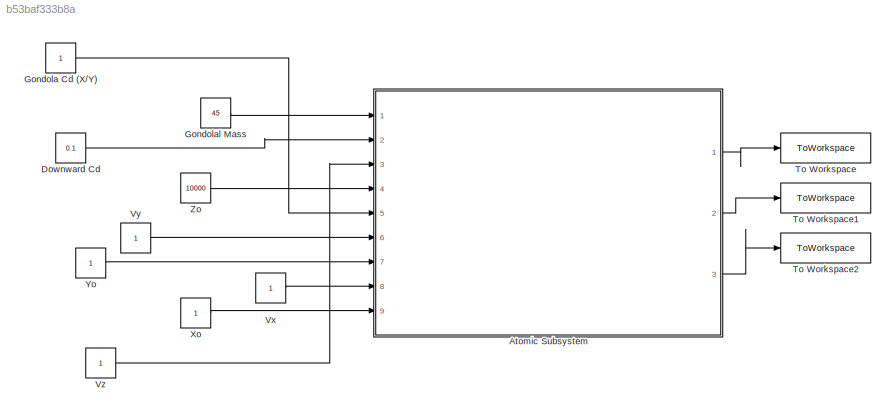
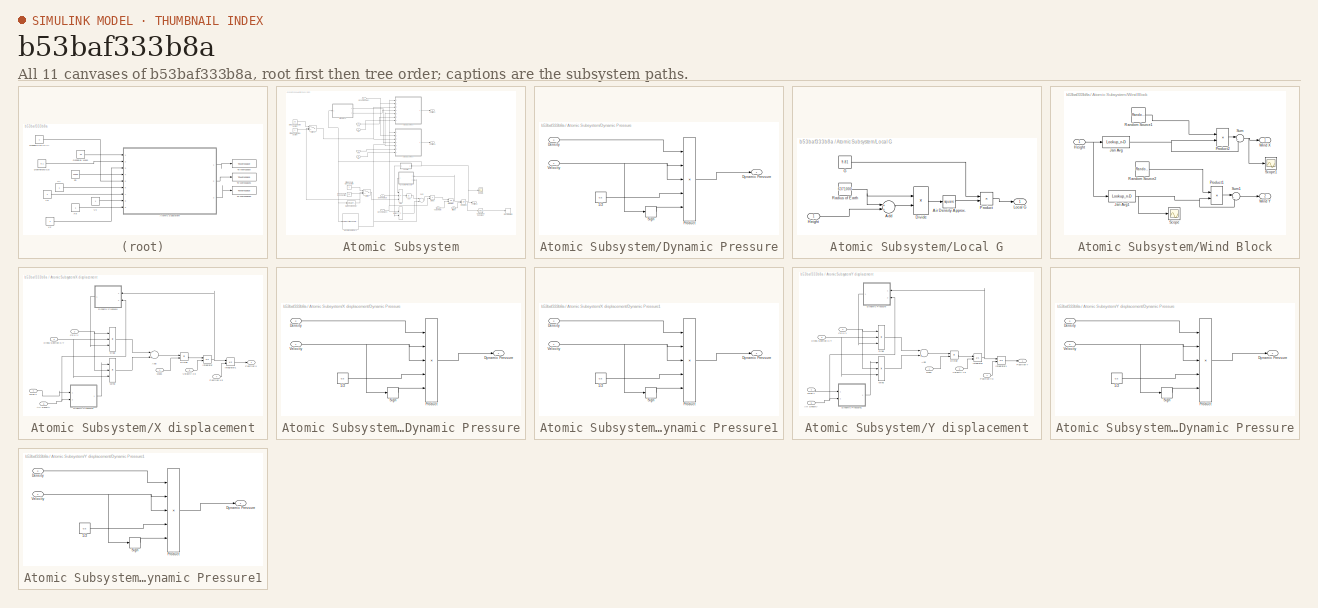
[diagram: thumbnail index - all 11 canvases of the model, root first then tree order]
MODEL slx_b53baf333b8a
KIND model
CONFIG AbsTol = auto
CONFIG EnableMultiTasking = off
CONFIG FixedStep = auto
CONFIG MaxStep = auto
CONFIG MinStep = auto
CONFIG RelTol = 1e-3
CONFIG SampleTimeConstraint = Unconstrained
CONFIG Solver = VariableStepAuto
CONFIG SolverName = VariableStepAuto
CONFIG StartTime = 0.0
CONFIG StopTime = 200.0
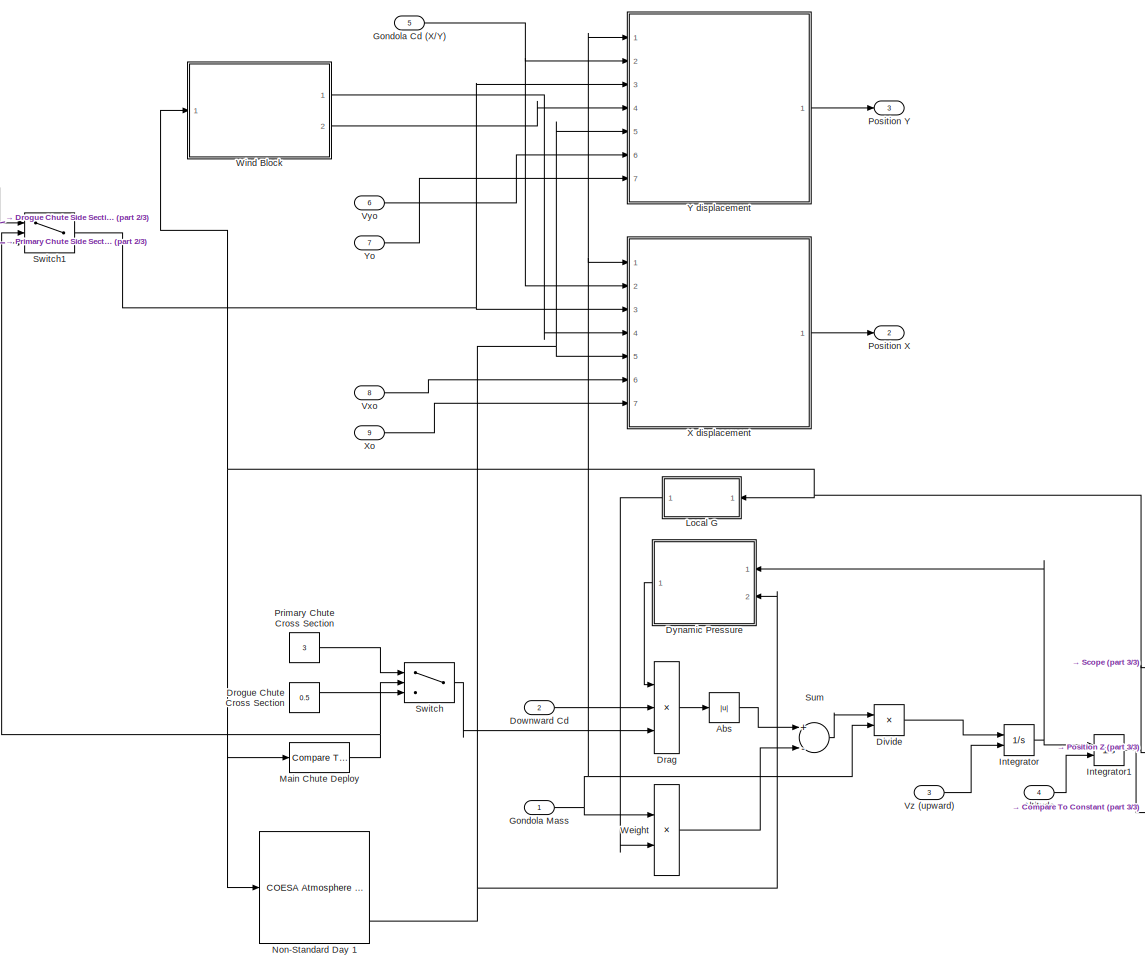
[diagram: Atomic Subsystem - part 1/3, center side, full height]
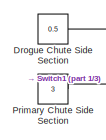
[diagram: Atomic Subsystem - part 2/3, top left region]
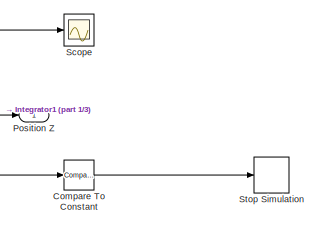
[diagram: Atomic Subsystem - part 3/3, bottom right region]
BLOCK [SubSystem] Atomic Subsystem
  Ports = [9, 3]
  RequestExecContextInheritance = off
  TreatAsAtomicUnit = on
BLOCK [Abs] Atomic Subsystem/Abs
  SaturateOnIntegerOverflow = off
BLOCK [Inport] Atomic Subsystem/Altitude
  IconDisplay = Port number
  Port = 4
BLOCK [Reference] Atomic Subsystem/Compare To Constant  REF=simulink/Logic and Bit
Operations/Compare
To Constant
  Ports = [1, 1]
  SourceBlock = simulink/Logic and Bit\nOperations/Compare\nTo Constant
  SourceProductBaseCode = SL
  SourceProductName = Simulink
  SourceType = Compare To Constant
BLOCK [Product] Atomic Subsystem/Divide
  InputSameDT = off
  Inputs = */
  OutDataTypeStr = Inherit: Inherit via internal rule
  Ports = [2, 1]
  RndMeth = Floor
  SaturateOnIntegerOverflow = off
BLOCK [Inport] Atomic Subsystem/Downward Cd
  IconDisplay = Port number
  Port = 2
BLOCK [Product] Atomic Subsystem/Drag
  InputSameDT = off
  Inputs = 3
  OutDataTypeStr = Inherit: Inherit via internal rule
  Ports = [3, 1]
  RndMeth = Floor
  SaturateOnIntegerOverflow = off
BLOCK [Constant] Atomic Subsystem/Drogue Chute Cross Section
  Value = 0.5
BLOCK [Constant] Atomic Subsystem/Drogue Chute Side Section
  Value = 0.5
BLOCK [SubSystem] Atomic Subsystem/Dynamic Pressure
  Ports = [2, 1]
  RequestExecContextInheritance = off
  TreatAsAtomicUnit = on
BLOCK [Constant] Atomic Subsystem/Dynamic Pressure/1//2
  Value = 0.5
BLOCK [Inport] Atomic Subsystem/Dynamic Pressure/Density
  IconDisplay = Port number
  Port = 2
BLOCK [Outport] Atomic Subsystem/Dynamic Pressure/Dynamic Pressure
  IconDisplay = Port number
BLOCK [Product] Atomic Subsystem/Dynamic Pressure/Product
  InputSameDT = off
  Inputs = 5
  OutDataTypeStr = Inherit: Inherit via internal rule
  Ports = [5, 1]
  RndMeth = Floor
  SaturateOnIntegerOverflow = off
BLOCK [Signum] Atomic Subsystem/Dynamic Pressure/Sign
BLOCK [Inport] Atomic Subsystem/Dynamic Pressure/Velocity 
  IconDisplay = Port number
BLOCK [Inport] Atomic Subsystem/Gondola Cd (X//Y)
  IconDisplay = Port number
  Port = 5
BLOCK [Inport] Atomic Subsystem/Gondola Mass
  IconDisplay = Port number
BLOCK [Integrator] Atomic Subsystem/Integrator
  InitialConditionSource = external
  Ports = [2, 1]
BLOCK [Integrator] Atomic Subsystem/Integrator1
  InitialConditionSource = external
  Ports = [2, 1]
BLOCK [SubSystem] Atomic Subsystem/Local G
  Ports = [1, 1]
  RequestExecContextInheritance = off
BLOCK [Sum] Atomic Subsystem/Local G/Add
  InputSameDT = off
  OutDataTypeStr = Inherit: Inherit via internal rule
  Ports = [2, 1]
  SaturateOnIntegerOverflow = off
BLOCK [Math] Atomic Subsystem/Local G/Air Density Approx.
  Operator = square
  OutMax = 10000
  OutMin = 0
  Ports = [1, 1]
BLOCK [Product] Atomic Subsystem/Local G/Divide
  InputSameDT = off
  Inputs = */
  OutDataTypeStr = Inherit: Inherit via internal rule
  Ports = [2, 1]
  RndMeth = Floor
  SaturateOnIntegerOverflow = off
BLOCK [Constant] Atomic Subsystem/Local G/G
  Value = 9.81
BLOCK [Inport] Atomic Subsystem/Local G/Height
  IconDisplay = Port number
BLOCK [Outport] Atomic Subsystem/Local G/Local G
  IconDisplay = Port number
  VectorParamsAs1DForOutWhenUnconnected = off
BLOCK [Product] Atomic Subsystem/Local G/Product
  InputSameDT = off
  OutDataTypeStr = Inherit: Inherit via internal rule
  Ports = [2, 1]
  RndMeth = Floor
  SaturateOnIntegerOverflow = off
BLOCK [Constant] Atomic Subsystem/Local G/Radius of Earth
  Value = 6371000
BLOCK [Reference] Atomic Subsystem/Main Chute Deploy  REF=simulink/Logic and Bit
Operations/Compare
To Constant
  Ports = [1, 1]
  SourceBlock = simulink/Logic and Bit\nOperations/Compare\nTo Constant
  SourceProductBaseCode = SL
  SourceProductName = Simulink
  SourceType = Compare To Constant
BLOCK [Reference] Atomic Subsystem/Non-Standard Day 1  REF=aerolibatmos2/COESA Atmosphere Model
  Ports = [1, 4]
  SourceBlock = aerolibatmos2/COESA Atmosphere Model
  SourceProductBaseCode = AE
  SourceProductName = Aerospace Blockset
  SourceType = Atmosphere Model
BLOCK [Outport] Atomic Subsystem/Position X
  IconDisplay = Port number
  Port = 2
BLOCK [Outport] Atomic Subsystem/Position Y
  IconDisplay = Port number
  Port = 3
BLOCK [Outport] Atomic Subsystem/Position Z
  IconDisplay = Port number
BLOCK [Constant] Atomic Subsystem/Primary Chute Cross Section
  Value = 3
BLOCK [Constant] Atomic Subsystem/Primary Chute Side Section
  Value = 3
BLOCK [Scope] Atomic Subsystem/Scope
  Floating = off
  NumInputPorts = 1
  Ports = [1]
  ScopeSpecificationString = Simulink.scopes.TimeScopeBlockCfg('CurrentConfiguration', extmgr.ConfigurationSet(extmgr.Configuration('Core','General UI',true),extmgr.Configuration('Core','Source UI',true),extmgr.Configuration('Sources','WiredSimulink',true),extmgr.Configuration('Visuals','Time Domain',true,'SerializedDisplays',{struct('MinYLimReal','-1246.63139','MaxYLimReal','11249.68252','YLabelReal','','MinYLimMag','  0.000...<+1418ch>
BLOCK [Stop] Atomic Subsystem/Stop Simulation
BLOCK [Sum] Atomic Subsystem/Sum
  InputSameDT = off
  Inputs = +-
  OutDataTypeStr = Inherit: Inherit via internal rule
  Ports = [2, 1]
  SaturateOnIntegerOverflow = off
BLOCK [Switch] Atomic Subsystem/Switch
  Criteria = u2 > Threshold
  InputSameDT = off
  SaturateOnIntegerOverflow = off
BLOCK [Switch] Atomic Subsystem/Switch1
  Criteria = u2 > Threshold
  InputSameDT = off
  SaturateOnIntegerOverflow = off
BLOCK [Inport] Atomic Subsystem/Vxo
  IconDisplay = Port number
  Port = 8
BLOCK [Inport] Atomic Subsystem/Vyo
  IconDisplay = Port number
  Port = 6
BLOCK [Inport] Atomic Subsystem/Vz (upward)
  IconDisplay = Port number
  Port = 3
BLOCK [Product] Atomic Subsystem/Weight
  InputSameDT = off
  OutDataTypeStr = Inherit: Inherit via internal rule
  Ports = [2, 1]
  RndMeth = Floor
  SaturateOnIntegerOverflow = off
BLOCK [SubSystem] Atomic Subsystem/Wind Block
  Ports = [1, 2]
  RequestExecContextInheritance = off
  TreatAsAtomicUnit = on
BLOCK [Inport] Atomic Subsystem/Wind Block/Height
  IconDisplay = Port number
BLOCK [Lookup_n-D] Atomic Subsystem/Wind Block/Jan Avg
  BreakpointsForDimension1 = [0,5000,10000,15000,20000,24000,100000]
  ExtrapMethod = Clip
  IndexSearchMethod = Linear search
  InternalRulePriority = Speed
  InterpMethod = Cubic spline
  NumberOfTableDimensions = 1
  Ports = [1, 1]
  RndMeth = Simplest
  Table = [2,17,30,22,5,2,0]
  UseLastTableValue = on
BLOCK [Lookup_n-D] Atomic Subsystem/Wind Block/Jan Avg1
  BreakpointsForDimension1 = [0,5000,10000,15000,20000,24000,100000]
  ExtrapMethod = Clip
  InternalRulePriority = Speed
  InterpMethod = Cubic spline
  NumberOfTableDimensions = 1
  Ports = [1, 1]
  RndMeth = Simplest
  Table = [2,17,30,22,5,2,0]
  UseLastTableValue = on
BLOCK [Product] Atomic Subsystem/Wind Block/Product1
  InputSameDT = off
  OutDataTypeStr = Inherit: Inherit via internal rule
  Ports = [2, 1]
  RndMeth = Floor
  SaturateOnIntegerOverflow = off
BLOCK [Product] Atomic Subsystem/Wind Block/Product2
  InputSameDT = off
  OutDataTypeStr = Inherit: Inherit via internal rule
  Ports = [2, 1]
  RndMeth = Floor
  SaturateOnIntegerOverflow = off
BLOCK [Reference] Atomic Subsystem/Wind Block/Random Source1  REF=dspsrcs4/Random
Source
  Ports = [0, 1]
  SourceBlock = dspsrcs4/Random\nSource
  SourceProductBaseCode = DS
  SourceProductName = DSP System Toolbox
  SourceType = Random Source
  UserDataPersistent = on
BLOCK [Reference] Atomic Subsystem/Wind Block/Random Source2  REF=dspsrcs4/Random
Source
  Ports = [0, 1]
  SourceBlock = dspsrcs4/Random\nSource
  SourceProductBaseCode = DS
  SourceProductName = DSP System Toolbox
  SourceType = Random Source
  UserDataPersistent = on
BLOCK [Scope] Atomic Subsystem/Wind Block/Scope
  Floating = off
  NumInputPorts = 1
  Ports = [1]
  ScopeSpecificationString = Simulink.scopes.TimeScopeBlockCfg('CurrentConfiguration', extmgr.ConfigurationSet(extmgr.Configuration('Core','General UI',true),extmgr.Configuration('Core','Source UI',true),extmgr.Configuration('Sources','WiredSimulink',true,'DataLoggingVariableName','ScopeData10'),extmgr.Configuration('Visuals','Time Domain',true,'SerializedDisplays',{struct('MinYLimReal','-1.03996','MaxYLimReal','29.38818','YL...<+1405ch>
BLOCK [Scope] Atomic Subsystem/Wind Block/Scope1
  Floating = off
  NumInputPorts = 1
  Ports = [1]
  ScopeSpecificationString = Simulink.scopes.TimeScopeBlockCfg('CurrentConfiguration', extmgr.ConfigurationSet(extmgr.Configuration('Core','General UI',true),extmgr.Configuration('Core','Source UI',true),extmgr.Configuration('Sources','WiredSimulink',true,'DataLoggingVariableName','ScopeData11'),extmgr.Configuration('Visuals','Time Domain',true,'SerializedDisplays',{struct('MinYLimReal','-0.7338','MaxYLimReal','20.73634','YLa...<+1397ch>
BLOCK [Sum] Atomic Subsystem/Wind Block/Sum
  IconShape = round
  InputSameDT = off
  Inputs = |++
  OutDataTypeStr = Inherit: Inherit via internal rule
  Ports = [2, 1]
  SaturateOnIntegerOverflow = off
BLOCK [Sum] Atomic Subsystem/Wind Block/Sum1
  IconShape = round
  InputSameDT = off
  Inputs = |++
  OutDataTypeStr = Inherit: Inherit via internal rule
  Ports = [2, 1]
  SaturateOnIntegerOverflow = off
BLOCK [Outport] Atomic Subsystem/Wind Block/Wind X
  IconDisplay = Port number
BLOCK [Outport] Atomic Subsystem/Wind Block/Wind Y
  IconDisplay = Port number
  Port = 2
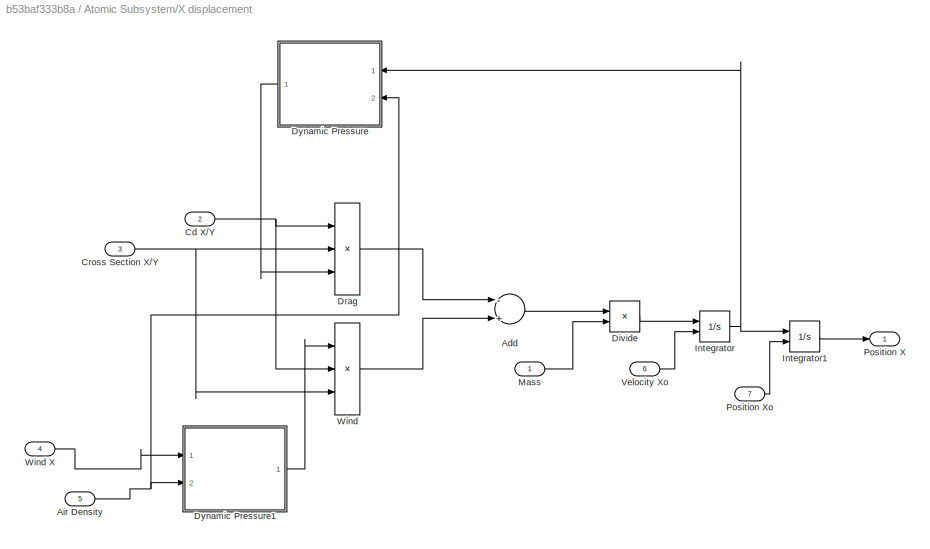
BLOCK [SubSystem] Atomic Subsystem/X displacement
  Ports = [7, 1]
  RequestExecContextInheritance = off
  TreatAsAtomicUnit = on
BLOCK [Sum] Atomic Subsystem/X displacement/Add
  InputSameDT = off
  Inputs = -+
  OutDataTypeStr = Inherit: Inherit via internal rule
  Ports = [2, 1]
  SaturateOnIntegerOverflow = off
BLOCK [Inport] Atomic Subsystem/X displacement/Air Density
  IconDisplay = Port number
  Port = 5
BLOCK [Inport] Atomic Subsystem/X displacement/Cd X//Y
  IconDisplay = Port number
  Port = 2
BLOCK [Inport] Atomic Subsystem/X displacement/Cross Section X//Y
  IconDisplay = Port number
  Port = 3
BLOCK [Product] Atomic Subsystem/X displacement/Divide
  InputSameDT = off
  Inputs = */
  OutDataTypeStr = Inherit: Inherit via internal rule
  Ports = [2, 1]
  RndMeth = Floor
  SaturateOnIntegerOverflow = off
BLOCK [Product] Atomic Subsystem/X displacement/Drag
  InputSameDT = off
  Inputs = 3
  OutDataTypeStr = Inherit: Inherit via internal rule
  Ports = [3, 1]
  RndMeth = Floor
  SaturateOnIntegerOverflow = off
BLOCK [SubSystem] Atomic Subsystem/X displacement/Dynamic Pressure
  Ports = [2, 1]
  RequestExecContextInheritance = off
  TreatAsAtomicUnit = on
BLOCK [Constant] Atomic Subsystem/X displacement/Dynamic Pressure/1//2
  Value = 0.5
BLOCK [Inport] Atomic Subsystem/X displacement/Dynamic Pressure/Density
  IconDisplay = Port number
  Port = 2
BLOCK [Outport] Atomic Subsystem/X displacement/Dynamic Pressure/Dynamic Pressure
  IconDisplay = Port number
BLOCK [Product] Atomic Subsystem/X displacement/Dynamic Pressure/Product
  InputSameDT = off
  Inputs = 5
  OutDataTypeStr = Inherit: Inherit via internal rule
  Ports = [5, 1]
  RndMeth = Floor
  SaturateOnIntegerOverflow = off
BLOCK [Signum] Atomic Subsystem/X displacement/Dynamic Pressure/Sign
BLOCK [Inport] Atomic Subsystem/X displacement/Dynamic Pressure/Velocity 
  IconDisplay = Port number
BLOCK [SubSystem] Atomic Subsystem/X displacement/Dynamic Pressure1
  Ports = [2, 1]
  RequestExecContextInheritance = off
  TreatAsAtomicUnit = on
BLOCK [Constant] Atomic Subsystem/X displacement/Dynamic Pressure1/1//2
  Value = 0.5
BLOCK [Inport] Atomic Subsystem/X displacement/Dynamic Pressure1/Density
  IconDisplay = Port number
  Port = 2
BLOCK [Outport] Atomic Subsystem/X displacement/Dynamic Pressure1/Dynamic Pressure
  IconDisplay = Port number
BLOCK [Product] Atomic Subsystem/X displacement/Dynamic Pressure1/Product
  InputSameDT = off
  Inputs = 5
  OutDataTypeStr = Inherit: Inherit via internal rule
  Ports = [5, 1]
  RndMeth = Floor
  SaturateOnIntegerOverflow = off
BLOCK [Signum] Atomic Subsystem/X displacement/Dynamic Pressure1/Sign
BLOCK [Inport] Atomic Subsystem/X displacement/Dynamic Pressure1/Velocity 
  IconDisplay = Port number
BLOCK [Integrator] Atomic Subsystem/X displacement/Integrator
  InitialConditionSource = external
  Ports = [2, 1]
BLOCK [Integrator] Atomic Subsystem/X displacement/Integrator1
  InitialConditionSource = external
  Ports = [2, 1]
BLOCK [Inport] Atomic Subsystem/X displacement/Mass
  IconDisplay = Port number
BLOCK [Outport] Atomic Subsystem/X displacement/Position X
  IconDisplay = Port number
BLOCK [Inport] Atomic Subsystem/X displacement/Position Xo
  IconDisplay = Port number
  Port = 7
BLOCK [Inport] Atomic Subsystem/X displacement/Velocity Xo
  IconDisplay = Port number
  Port = 6
BLOCK [Product] Atomic Subsystem/X displacement/Wind
  InputSameDT = off
  Inputs = 3
  OutDataTypeStr = Inherit: Inherit via internal rule
  Ports = [3, 1]
  RndMeth = Floor
  SaturateOnIntegerOverflow = off
BLOCK [Inport] Atomic Subsystem/X displacement/Wind X
  IconDisplay = Port number
  Port = 4
BLOCK [Inport] Atomic Subsystem/Xo
  IconDisplay = Port number
  Port = 9
BLOCK [SubSystem] Atomic Subsystem/Y displacement
  Ports = [7, 1]
  RequestExecContextInheritance = off
  TreatAsAtomicUnit = on
BLOCK [Sum] Atomic Subsystem/Y displacement/Add
  InputSameDT = off
  Inputs = -+
  OutDataTypeStr = Inherit: Inherit via internal rule
  Ports = [2, 1]
  SaturateOnIntegerOverflow = off
BLOCK [Inport] Atomic Subsystem/Y displacement/Air Density
  IconDisplay = Port number
  Port = 5
BLOCK [Inport] Atomic Subsystem/Y displacement/Cd X//Y
  IconDisplay = Port number
  Port = 2
BLOCK [Inport] Atomic Subsystem/Y displacement/Cross Section X//Y
  IconDisplay = Port number
  Port = 3
BLOCK [Product] Atomic Subsystem/Y displacement/Divide
  InputSameDT = off
  Inputs = */
  OutDataTypeStr = Inherit: Inherit via internal rule
  Ports = [2, 1]
  RndMeth = Floor
  SaturateOnIntegerOverflow = off
BLOCK [Product] Atomic Subsystem/Y displacement/Drag
  InputSameDT = off
  Inputs = 3
  OutDataTypeStr = Inherit: Inherit via internal rule
  Ports = [3, 1]
  RndMeth = Floor
  SaturateOnIntegerOverflow = off
BLOCK [SubSystem] Atomic Subsystem/Y displacement/Dynamic Pressure
  Ports = [2, 1]
  RequestExecContextInheritance = off
  TreatAsAtomicUnit = on
BLOCK [Constant] Atomic Subsystem/Y displacement/Dynamic Pressure/1//2
  Value = 0.5
BLOCK [Inport] Atomic Subsystem/Y displacement/Dynamic Pressure/Density
  IconDisplay = Port number
  Port = 2
BLOCK [Outport] Atomic Subsystem/Y displacement/Dynamic Pressure/Dynamic Pressure
  IconDisplay = Port number
BLOCK [Product] Atomic Subsystem/Y displacement/Dynamic Pressure/Product
  InputSameDT = off
  Inputs = 5
  OutDataTypeStr = Inherit: Inherit via internal rule
  Ports = [5, 1]
  RndMeth = Floor
  SaturateOnIntegerOverflow = off
BLOCK [Signum] Atomic Subsystem/Y displacement/Dynamic Pressure/Sign
BLOCK [Inport] Atomic Subsystem/Y displacement/Dynamic Pressure/Velocity 
  IconDisplay = Port number
BLOCK [SubSystem] Atomic Subsystem/Y displacement/Dynamic Pressure1
  Ports = [2, 1]
  RequestExecContextInheritance = off
  TreatAsAtomicUnit = on
BLOCK [Constant] Atomic Subsystem/Y displacement/Dynamic Pressure1/1//2
  Value = 0.5
BLOCK [Inport] Atomic Subsystem/Y displacement/Dynamic Pressure1/Density
  IconDisplay = Port number
  Port = 2
BLOCK [Outport] Atomic Subsystem/Y displacement/Dynamic Pressure1/Dynamic Pressure
  IconDisplay = Port number
BLOCK [Product] Atomic Subsystem/Y displacement/Dynamic Pressure1/Product
  InputSameDT = off
  Inputs = 5
  OutDataTypeStr = Inherit: Inherit via internal rule
  Ports = [5, 1]
  RndMeth = Floor
  SaturateOnIntegerOverflow = off
BLOCK [Signum] Atomic Subsystem/Y displacement/Dynamic Pressure1/Sign
BLOCK [Inport] Atomic Subsystem/Y displacement/Dynamic Pressure1/Velocity 
  IconDisplay = Port number
BLOCK [Integrator] Atomic Subsystem/Y displacement/Integrator
  InitialConditionSource = external
  Ports = [2, 1]
BLOCK [Integrator] Atomic Subsystem/Y displacement/Integrator1
  InitialConditionSource = external
  Ports = [2, 1]
BLOCK [Inport] Atomic Subsystem/Y displacement/Mass
  IconDisplay = Port number
BLOCK [Outport] Atomic Subsystem/Y displacement/Position Y
  IconDisplay = Port number
BLOCK [Inport] Atomic Subsystem/Y displacement/Position Yo
  IconDisplay = Port number
  Port = 7
BLOCK [Inport] Atomic Subsystem/Y displacement/Velocity Yo
  IconDisplay = Port number
  Port = 6
BLOCK [Product] Atomic Subsystem/Y displacement/Wind
  InputSameDT = off
  Inputs = 3
  OutDataTypeStr = Inherit: Inherit via internal rule
  Ports = [3, 1]
  RndMeth = Floor
  SaturateOnIntegerOverflow = off
BLOCK [Inport] Atomic Subsystem/Y displacement/Wind Y
  IconDisplay = Port number
  Port = 4
BLOCK [Inport] Atomic Subsystem/Yo
  IconDisplay = Port number
  Port = 7
BLOCK [Constant] Downward Cd
  Value = 0.1
BLOCK [Constant] Gondola Cd (X//Y)
BLOCK [Constant] Gondolal Mass
  Value = 45
BLOCK [ToWorkspace] To Workspace
  FixptAsFi = on
  MaxDataPoints = inf
  Ports = [1]
  SampleTime = -1
  VariableName = ALP_landing_X
BLOCK [ToWorkspace] To Workspace1
  FixptAsFi = on
  MaxDataPoints = inf
  Ports = [1]
  SampleTime = -1
  VariableName = ALP_landing_Y
BLOCK [ToWorkspace] To Workspace2
  FixptAsFi = on
  MaxDataPoints = inf
  Ports = [1]
  SampleTime = -1
  VariableName = ALP_landing_Z
BLOCK [Constant] Vx
BLOCK [Constant] Vy
BLOCK [Constant] Vz
BLOCK [Constant] Xo
BLOCK [Constant] Yo
BLOCK [Constant] Zo
  Value = 10000
LINE Atomic Subsystem/Abs:1 -> Atomic Subsystem/Sum:1
LINE Atomic Subsystem/Altitude:1 -> Atomic Subsystem/Integrator1:2
LINE Atomic Subsystem/Compare To Constant:1 -> Atomic Subsystem/Stop Simulation:1
LINE Atomic Subsystem/Divide:1 -> Atomic Subsystem/Integrator:1
LINE Atomic Subsystem/Downward Cd:1 -> Atomic Subsystem/Drag:2
LINE Atomic Subsystem/Drag:1 -> Atomic Subsystem/Abs:1
LINE Atomic Subsystem/Drogue Chute Cross Section:1 -> Atomic Subsystem/Switch:3
LINE Atomic Subsystem/Drogue Chute Side Section:1 -> Atomic Subsystem/Switch1:1
LINE Atomic Subsystem/Dynamic Pressure/1//2:1 -> Atomic Subsystem/Dynamic Pressure/Product:4
LINE Atomic Subsystem/Dynamic Pressure/Density:1 -> Atomic Subsystem/Dynamic Pressure/Product:1
LINE Atomic Subsystem/Dynamic Pressure/Product:1 -> Atomic Subsystem/Dynamic Pressure/Dynamic Pressure:1
LINE Atomic Subsystem/Dynamic Pressure/Sign:1 -> Atomic Subsystem/Dynamic Pressure/Product:5
NET Atomic Subsystem/Dynamic Pressure/Velocity :1 -> Atomic Subsystem/Dynamic Pressure/Product:2, Atomic Subsystem/Dynamic Pressure/Product:3, Atomic Subsystem/Dynamic Pressure/Sign:1
LINE Atomic Subsystem/Dynamic Pressure:1 -> Atomic Subsystem/Drag:1
NET Atomic Subsystem/Gondola Cd (X//Y):1 -> Atomic Subsystem/X displacement:2, Atomic Subsystem/Y displacement:2
NET Atomic Subsystem/Gondola Mass:1 -> Atomic Subsystem/Divide:2, Atomic Subsystem/Weight:1, Atomic Subsystem/X displacement:1, Atomic Subsystem/Y displacement:1
NET Atomic Subsystem/Integrator1:1 -> Atomic Subsystem/Compare To Constant:1, Atomic Subsystem/Local G:1, Atomic Subsystem/Main Chute Deploy:1, Atomic Subsystem/Non-Standard Day 1:1, Atomic Subsystem/Position Z:1, Atomic Subsystem/Scope:1, Atomic Subsystem/Wind Block:1
NET Atomic Subsystem/Integrator:1 -> Atomic Subsystem/Dynamic Pressure:1, Atomic Subsystem/Integrator1:1
LINE Atomic Subsystem/Local G/Add:1 -> Atomic Subsystem/Local G/Divide:2
LINE Atomic Subsystem/Local G/Air Density Approx.:1 -> Atomic Subsystem/Local G/Product:2
LINE Atomic Subsystem/Local G/Divide:1 -> Atomic Subsystem/Local G/Air Density Approx.:1
LINE Atomic Subsystem/Local G/G:1 -> Atomic Subsystem/Local G/Product:1
LINE Atomic Subsystem/Local G/Height:1 -> Atomic Subsystem/Local G/Add:2
LINE Atomic Subsystem/Local G/Product:1 -> Atomic Subsystem/Local G/Local G:1
NET Atomic Subsystem/Local G/Radius of Earth:1 -> Atomic Subsystem/Local G/Add:1, Atomic Subsystem/Local G/Divide:1
LINE Atomic Subsystem/Local G:1 -> Atomic Subsystem/Weight:2
NET Atomic Subsystem/Main Chute Deploy:1 -> Atomic Subsystem/Switch1:2, Atomic Subsystem/Switch:2
NET Atomic Subsystem/Non-Standard Day 1:4 -> Atomic Subsystem/Dynamic Pressure:2, Atomic Subsystem/X displacement:5, Atomic Subsystem/Y displacement:5
LINE Atomic Subsystem/Primary Chute Cross Section:1 -> Atomic Subsystem/Switch:1
LINE Atomic Subsystem/Primary Chute Side Section:1 -> Atomic Subsystem/Switch1:3
LINE Atomic Subsystem/Sum:1 -> Atomic Subsystem/Divide:1
NET Atomic Subsystem/Switch1:1 -> Atomic Subsystem/X displacement:3, Atomic Subsystem/Y displacement:3
LINE Atomic Subsystem/Switch:1 -> Atomic Subsystem/Drag:3
LINE Atomic Subsystem/Vxo:1 -> Atomic Subsystem/X displacement:6
LINE Atomic Subsystem/Vyo:1 -> Atomic Subsystem/Y displacement:6
LINE Atomic Subsystem/Vz (upward):1 -> Atomic Subsystem/Integrator:2
LINE Atomic Subsystem/Weight:1 -> Atomic Subsystem/Sum:2
NET Atomic Subsystem/Wind Block/Height:1 -> Atomic Subsystem/Wind Block/Jan Avg1:1, Atomic Subsystem/Wind Block/Jan Avg:1
NET Atomic Subsystem/Wind Block/Jan Avg1:1 -> Atomic Subsystem/Wind Block/Product1:2, Atomic Subsystem/Wind Block/Scope:1, Atomic Subsystem/Wind Block/Sum1:2
NET Atomic Subsystem/Wind Block/Jan Avg:1 -> Atomic Subsystem/Wind Block/Product2:2, Atomic Subsystem/Wind Block/Sum:2
LINE Atomic Subsystem/Wind Block/Product1:1 -> Atomic Subsystem/Wind Block/Sum1:1
LINE Atomic Subsystem/Wind Block/Product2:1 -> Atomic Subsystem/Wind Block/Sum:1
LINE Atomic Subsystem/Wind Block/Random Source1:1 -> Atomic Subsystem/Wind Block/Product2:1
LINE Atomic Subsystem/Wind Block/Random Source2:1 -> Atomic Subsystem/Wind Block/Product1:1
LINE Atomic Subsystem/Wind Block/Sum1:1 -> Atomic Subsystem/Wind Block/Wind Y:1
NET Atomic Subsystem/Wind Block/Sum:1 -> Atomic Subsystem/Wind Block/Scope1:1, Atomic Subsystem/Wind Block/Wind X:1
LINE Atomic Subsystem/Wind Block:1 -> Atomic Subsystem/X displacement:4
LINE Atomic Subsystem/Wind Block:2 -> Atomic Subsystem/Y displacement:4
LINE Atomic Subsystem/X displacement/Add:1 -> Atomic Subsystem/X displacement/Divide:1
NET Atomic Subsystem/X displacement/Air Density:1 -> Atomic Subsystem/X displacement/Dynamic Pressure1:2, Atomic Subsystem/X displacement/Dynamic Pressure:2
NET Atomic Subsystem/X displacement/Cd X//Y:1 -> Atomic Subsystem/X displacement/Drag:1, Atomic Subsystem/X displacement/Wind:2
NET Atomic Subsystem/X displacement/Cross Section X//Y:1 -> Atomic Subsystem/X displacement/Drag:2, Atomic Subsystem/X displacement/Wind:3
LINE Atomic Subsystem/X displacement/Divide:1 -> Atomic Subsystem/X displacement/Integrator:1
LINE Atomic Subsystem/X displacement/Drag:1 -> Atomic Subsystem/X displacement/Add:1
LINE Atomic Subsystem/X displacement/Dynamic Pressure/1//2:1 -> Atomic Subsystem/X displacement/Dynamic Pressure/Product:4
LINE Atomic Subsystem/X displacement/Dynamic Pressure/Density:1 -> Atomic Subsystem/X displacement/Dynamic Pressure/Product:1
LINE Atomic Subsystem/X displacement/Dynamic Pressure/Product:1 -> Atomic Subsystem/X displacement/Dynamic Pressure/Dynamic Pressure:1
LINE Atomic Subsystem/X displacement/Dynamic Pressure/Sign:1 -> Atomic Subsystem/X displacement/Dynamic Pressure/Product:5
NET Atomic Subsystem/X displacement/Dynamic Pressure/Velocity :1 -> Atomic Subsystem/X displacement/Dynamic Pressure/Product:2, Atomic Subsystem/X displacement/Dynamic Pressure/Product:3, Atomic Subsystem/X displacement/Dynamic Pressure/Sign:1
LINE Atomic Subsystem/X displacement/Dynamic Pressure1/1//2:1 -> Atomic Subsystem/X displacement/Dynamic Pressure1/Product:4
LINE Atomic Subsystem/X displacement/Dynamic Pressure1/Density:1 -> Atomic Subsystem/X displacement/Dynamic Pressure1/Product:1
LINE Atomic Subsystem/X displacement/Dynamic Pressure1/Product:1 -> Atomic Subsystem/X displacement/Dynamic Pressure1/Dynamic Pressure:1
LINE Atomic Subsystem/X displacement/Dynamic Pressure1/Sign:1 -> Atomic Subsystem/X displacement/Dynamic Pressure1/Product:5
NET Atomic Subsystem/X displacement/Dynamic Pressure1/Velocity :1 -> Atomic Subsystem/X displacement/Dynamic Pressure1/Product:2, Atomic Subsystem/X displacement/Dynamic Pressure1/Product:3, Atomic Subsystem/X displacement/Dynamic Pressure1/Sign:1
LINE Atomic Subsystem/X displacement/Dynamic Pressure1:1 -> Atomic Subsystem/X displacement/Wind:1
LINE Atomic Subsystem/X displacement/Dynamic Pressure:1 -> Atomic Subsystem/X displacement/Drag:3
LINE Atomic Subsystem/X displacement/Integrator1:1 -> Atomic Subsystem/X displacement/Position X:1
NET Atomic Subsystem/X displacement/Integrator:1 -> Atomic Subsystem/X displacement/Dynamic Pressure:1, Atomic Subsystem/X displacement/Integrator1:1
LINE Atomic Subsystem/X displacement/Mass:1 -> Atomic Subsystem/X displacement/Divide:2
LINE Atomic Subsystem/X displacement/Position Xo:1 -> Atomic Subsystem/X displacement/Integrator1:2
LINE Atomic Subsystem/X displacement/Velocity Xo:1 -> Atomic Subsystem/X displacement/Integrator:2
LINE Atomic Subsystem/X displacement/Wind X:1 -> Atomic Subsystem/X displacement/Dynamic Pressure1:1
LINE Atomic Subsystem/X displacement/Wind:1 -> Atomic Subsystem/X displacement/Add:2
LINE Atomic Subsystem/X displacement:1 -> Atomic Subsystem/Position X:1
LINE Atomic Subsystem/Xo:1 -> Atomic Subsystem/X displacement:7
LINE Atomic Subsystem/Y displacement/Add:1 -> Atomic Subsystem/Y displacement/Divide:1
NET Atomic Subsystem/Y displacement/Air Density:1 -> Atomic Subsystem/Y displacement/Dynamic Pressure1:2, Atomic Subsystem/Y displacement/Dynamic Pressure:2
NET Atomic Subsystem/Y displacement/Cd X//Y:1 -> Atomic Subsystem/Y displacement/Drag:1, Atomic Subsystem/Y displacement/Wind:2
NET Atomic Subsystem/Y displacement/Cross Section X//Y:1 -> Atomic Subsystem/Y displacement/Drag:2, Atomic Subsystem/Y displacement/Wind:3
LINE Atomic Subsystem/Y displacement/Divide:1 -> Atomic Subsystem/Y displacement/Integrator:1
LINE Atomic Subsystem/Y displacement/Drag:1 -> Atomic Subsystem/Y displacement/Add:1
LINE Atomic Subsystem/Y displacement/Dynamic Pressure/1//2:1 -> Atomic Subsystem/Y displacement/Dynamic Pressure/Product:4
LINE Atomic Subsystem/Y displacement/Dynamic Pressure/Density:1 -> Atomic Subsystem/Y displacement/Dynamic Pressure/Product:1
LINE Atomic Subsystem/Y displacement/Dynamic Pressure/Product:1 -> Atomic Subsystem/Y displacement/Dynamic Pressure/Dynamic Pressure:1
LINE Atomic Subsystem/Y displacement/Dynamic Pressure/Sign:1 -> Atomic Subsystem/Y displacement/Dynamic Pressure/Product:5
NET Atomic Subsystem/Y displacement/Dynamic Pressure/Velocity :1 -> Atomic Subsystem/Y displacement/Dynamic Pressure/Product:2, Atomic Subsystem/Y displacement/Dynamic Pressure/Product:3, Atomic Subsystem/Y displacement/Dynamic Pressure/Sign:1
LINE Atomic Subsystem/Y displacement/Dynamic Pressure1/1//2:1 -> Atomic Subsystem/Y displacement/Dynamic Pressure1/Product:4
LINE Atomic Subsystem/Y displacement/Dynamic Pressure1/Density:1 -> Atomic Subsystem/Y displacement/Dynamic Pressure1/Product:1
LINE Atomic Subsystem/Y displacement/Dynamic Pressure1/Product:1 -> Atomic Subsystem/Y displacement/Dynamic Pressure1/Dynamic Pressure:1
LINE Atomic Subsystem/Y displacement/Dynamic Pressure1/Sign:1 -> Atomic Subsystem/Y displacement/Dynamic Pressure1/Product:5
NET Atomic Subsystem/Y displacement/Dynamic Pressure1/Velocity :1 -> Atomic Subsystem/Y displacement/Dynamic Pressure1/Product:2, Atomic Subsystem/Y displacement/Dynamic Pressure1/Product:3, Atomic Subsystem/Y displacement/Dynamic Pressure1/Sign:1
LINE Atomic Subsystem/Y displacement/Dynamic Pressure1:1 -> Atomic Subsystem/Y displacement/Wind:1
LINE Atomic Subsystem/Y displacement/Dynamic Pressure:1 -> Atomic Subsystem/Y displacement/Drag:3
LINE Atomic Subsystem/Y displacement/Integrator1:1 -> Atomic Subsystem/Y displacement/Position Y:1
NET Atomic Subsystem/Y displacement/Integrator:1 -> Atomic Subsystem/Y displacement/Dynamic Pressure:1, Atomic Subsystem/Y displacement/Integrator1:1
LINE Atomic Subsystem/Y displacement/Mass:1 -> Atomic Subsystem/Y displacement/Divide:2
LINE Atomic Subsystem/Y displacement/Position Yo:1 -> Atomic Subsystem/Y displacement/Integrator1:2
LINE Atomic Subsystem/Y displacement/Velocity Yo:1 -> Atomic Subsystem/Y displacement/Integrator:2
LINE Atomic Subsystem/Y displacement/Wind Y:1 -> Atomic Subsystem/Y displacement/Dynamic Pressure1:1
LINE Atomic Subsystem/Y displacement/Wind:1 -> Atomic Subsystem/Y displacement/Add:2
LINE Atomic Subsystem/Y displacement:1 -> Atomic Subsystem/Position Y:1
LINE Atomic Subsystem/Yo:1 -> Atomic Subsystem/Y displacement:7
LINE Atomic Subsystem:1 -> To Workspace:1
LINE Atomic Subsystem:2 -> To Workspace1:1
LINE Atomic Subsystem:3 -> To Workspace2:1
LINE Downward Cd:1 -> Atomic Subsystem:2
LINE Gondola Cd (X//Y):1 -> Atomic Subsystem:5
LINE Gondolal Mass:1 -> Atomic Subsystem:1
LINE Vx:1 -> Atomic Subsystem:8
LINE Vy:1 -> Atomic Subsystem:6
LINE Vz:1 -> Atomic Subsystem:3
LINE Xo:1 -> Atomic Subsystem:9
LINE Yo:1 -> Atomic Subsystem:7
LINE Zo:1 -> Atomic Subsystem:4
note: NET lines group one-source signal fan-out (src -> all destinations, sorted); 1:1 wires keep LINE
